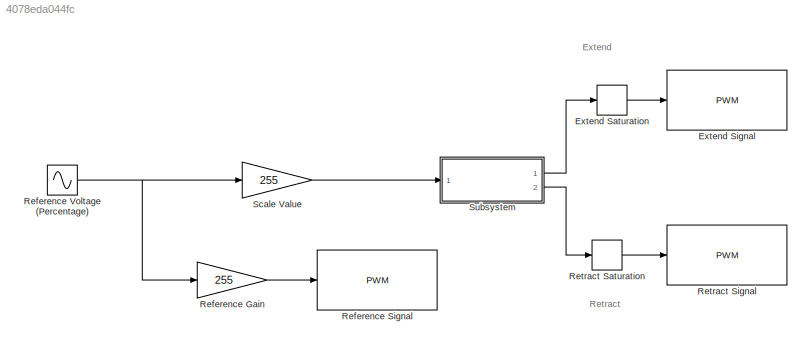
MODEL slx_4078eda044fc
KIND model
BLOCK [MinMax] Extend Saturation
  Function = max
  InputSameDT = off
  OutDataTypeStr = int16
  OutMax = [255]
  OutMin = [0]
  Ports = [1, 1]
BLOCK [Reference] Extend Signal  REF=arduinolib/PWM
  Ports = [1]
  SourceBlock = arduinolib/PWM
  SourceType = Arduino PWM
  pinNumber = 5
BLOCK [Gain] Reference Gain
  Gain = 255
  OutDataTypeStr = Inherit: Inherit via internal rule
  ParamDataTypeStr = Inherit: Inherit via internal rule
  SaturateOnIntegerOverflow = off
BLOCK [Reference] Reference Signal  REF=arduinolib/PWM
  Ports = [1]
  SourceBlock = arduinolib/PWM
  SourceType = Arduino PWM
  pinNumber = 9
BLOCK [Sin] Reference Voltage (Percentage)
  Frequency = 7
  Ports = [0, 1]
  SampleTime = 0
BLOCK [MinMax] Retract Saturation
  Function = max
  InputSameDT = off
  OutDataTypeStr = int16
  OutMax = [255]
  OutMin = [0]
  Ports = [1, 1]
BLOCK [Reference] Retract Signal  REF=arduinolib/PWM
  Ports = [1]
  SourceBlock = arduinolib/PWM
  SourceType = Arduino PWM
  pinNumber = 7
BLOCK [Gain] Scale Value
  Gain = 255
  OutDataTypeStr = Inherit: Inherit via internal rule
  ParamDataTypeStr = Inherit: Inherit via internal rule
  SaturateOnIntegerOverflow = off
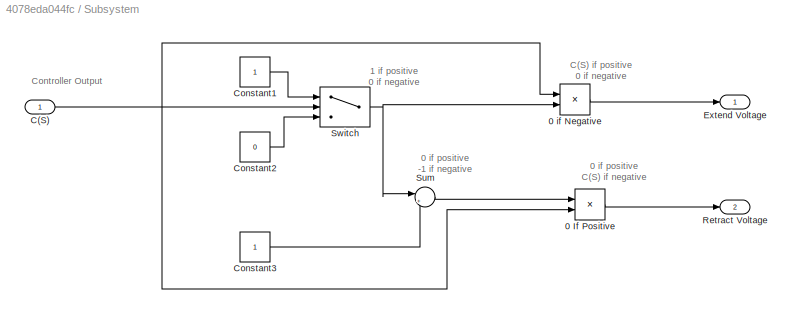
BLOCK [SubSystem] Subsystem
  Ports = [1, 2]
  RequestExecContextInheritance = off
BLOCK [Product] Subsystem/0 If Positive
  InputSameDT = off
  OutDataTypeStr = Inherit: Inherit via internal rule
  Ports = [2, 1]
  RndMeth = Floor
  SaturateOnIntegerOverflow = off
BLOCK [Product] Subsystem/0 if Negative
  InputSameDT = off
  OutDataTypeStr = Inherit: Inherit via internal rule
  Ports = [2, 1]
  RndMeth = Floor
  SaturateOnIntegerOverflow = off
BLOCK [Inport] Subsystem/C(S)
  IconDisplay = Port number
BLOCK [Constant] Subsystem/Constant1
BLOCK [Constant] Subsystem/Constant2
  Value = 0
BLOCK [Constant] Subsystem/Constant3
BLOCK [Outport] Subsystem/Extend Voltage
  IconDisplay = Port number
BLOCK [Outport] Subsystem/Retract Voltage
  IconDisplay = Port number
  Port = 2
BLOCK [Sum] Subsystem/Sum
  IconShape = round
  InputSameDT = off
  Inputs = |+-
  OutDataTypeStr = Inherit: Inherit via internal rule
  Ports = [2, 1]
  SaturateOnIntegerOverflow = off
BLOCK [Switch] Subsystem/Switch
  InputSameDT = off
  SaturateOnIntegerOverflow = off
ANNOTATION (root): Extend
ANNOTATION (root): Retract
ANNOTATION Subsystem: 0 if positive -1 if negative
ANNOTATION Subsystem: 0 if positive C(S) if negative
ANNOTATION Subsystem: 1 if positive 0 if negative
ANNOTATION Subsystem: C(S) if positive 0 if negative
ANNOTATION Subsystem: Controller Output
LINE Extend Saturation:1 -> Extend Signal:1
LINE Reference Gain:1 -> Reference Signal:1
NET Reference Voltage (Percentage):1 -> Reference Gain:1, Scale Value:1
LINE Retract Saturation:1 -> Retract Signal:1
LINE Scale Value:1 -> Subsystem:1
LINE Subsystem/0 If Positive:1 -> Subsystem/Retract Voltage:1
LINE Subsystem/0 if Negative:1 -> Subsystem/Extend Voltage:1
NET Subsystem/C(S):1 -> Subsystem/0 If Positive:2, Subsystem/0 if Negative:1, Subsystem/Switch:2
LINE Subsystem/Constant1:1 -> Subsystem/Switch:1
LINE Subsystem/Constant2:1 -> Subsystem/Switch:3
LINE Subsystem/Constant3:1 -> Subsystem/Sum:2
LINE Subsystem/Sum:1 -> Subsystem/0 If Positive:1
NET Subsystem/Switch:1 -> Subsystem/0 if Negative:2, Subsystem/Sum:1
LINE Subsystem:1 -> Extend Saturation:1
LINE Subsystem:2 -> Retract Saturation:1
note: NET lines group one-source signal fan-out (src -> all destinations, sorted); 1:1 wires keep LINE
